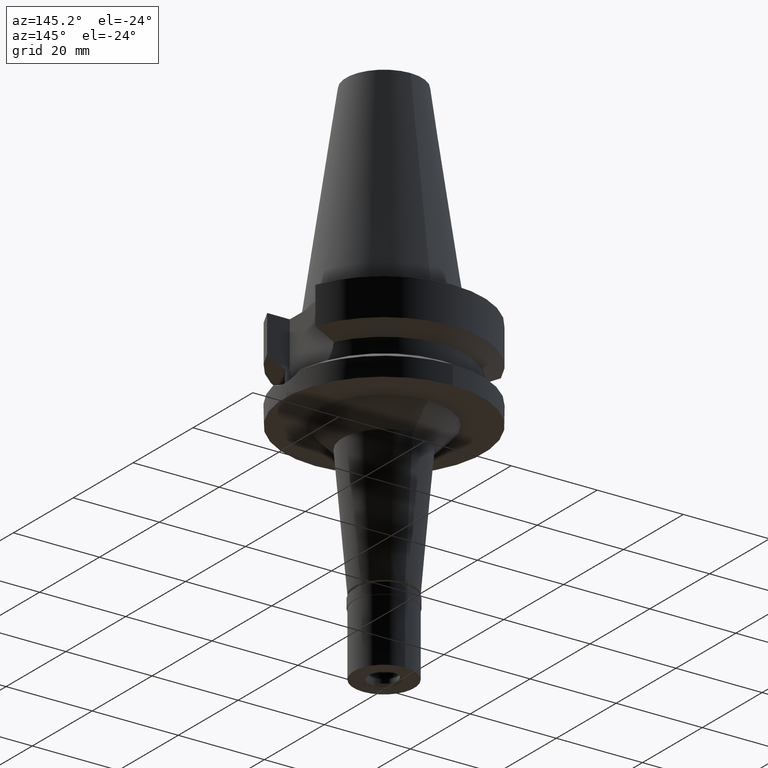
[diagram: clean part render]
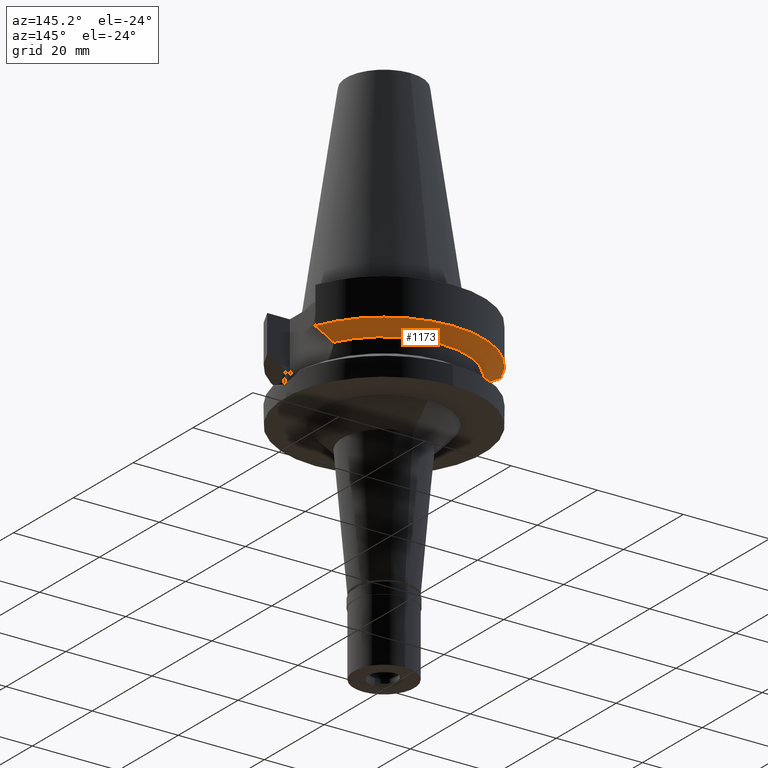
[diagram: same view with one face highlighted and labeled with its STEP entity id]
A machine part, auxiliary view. The second image highlights one B-rep face of the part: STEP entity #1173.
In plain terms, the highlighted conical surface has half-angle 60 deg.
Its self-contained STEP definition (entity closure, byte-faithful):
#4 = ORIENTED_EDGE ( 'NONE', *, *, #2359, .T. ) ;
#71 = CARTESIAN_POINT ( 'NONE',  ( -18.96736186712000105, 8.050001278060001653, -10.94999977536999936 ) ) ;
#74 = CARTESIAN_POINT ( 'NONE',  ( 20.64098922513855783, 8.049999155450747068, -10.05625859774404773 ) ) ;
#216 = CARTESIAN_POINT ( 'NONE',  ( 21.54524325238000060, 8.049999577379001181, -9.567211146543000311 ) ) ;
#226 = CIRCLE ( 'NONE', #2945, 19.00000000000000000 ) ;
#272 = CARTESIAN_POINT ( 'NONE',  ( -21.54524231189000005, 8.050002094537999753, -9.567194606710000215 ) ) ;
#275 = DIRECTION ( 'NONE',  ( 0.0000000000000000000, 0.0000000000000000000, -1.000000000000000000 ) ) ;
#293 = CARTESIAN_POINT ( 'NONE',  ( 19.78174442298432112, 8.049991903556993122, -10.51718567366341972 ) ) ;
#300 = CARTESIAN_POINT ( 'NONE',  ( -18.96736186712000105, 8.050001278060001653, -10.94999977536999936 ) ) ;
#309 = AXIS2_PLACEMENT_3D ( 'NONE', #2471, #1795, #442 ) ;
#416 = EDGE_CURVE ( 'NONE', #2184, #496, #1579, .T. ) ;
#442 = DIRECTION ( 'NONE',  ( 0.0000000000000000000, 1.000000000000000000, 0.0000000000000000000 ) ) ;
#447 = B_SPLINE_CURVE_WITH_KNOTS ( 'NONE', 3,
 ( #1664, #2125, #2218, #2891 ),
 .UNSPECIFIED., .F., .F.,
 ( 4, 4 ),
 ( 0.0000000000000000000, 1.000000000000000000 ),
 .UNSPECIFIED. ) ;
#496 = VERTEX_POINT ( 'NONE', #978 ) ;
#557 = ORIENTED_EDGE ( 'NONE', *, *, #1534, .T. ) ;
#602 = VERTEX_POINT ( 'NONE', #300 ) ;
#732 = B_SPLINE_CURVE_WITH_KNOTS ( 'NONE', 3,
 ( #1617, #939, #2732, #2939 ),
 .UNSPECIFIED., .F., .F.,
 ( 4, 4 ),
 ( 0.0000000000000000000, 1.000000000000000000 ),
 .UNSPECIFIED. ) ;
#786 = DIRECTION ( 'NONE',  ( 0.0000000000000000000, 1.000000000000000000, 0.0000000000000000000 ) ) ;
#837 = CARTESIAN_POINT ( 'NONE',  ( 0.0000000000000000000, 1.093341284896999988E-14, -10.72190890808999875 ) ) ;
#939 = CARTESIAN_POINT ( 'NONE',  ( -18.30417674803561212, 8.050000009835176940, -11.30245975391281377 ) ) ;
#978 = CARTESIAN_POINT ( 'NONE',  ( -21.54524231189000005, 8.050002094537999753, -9.567194606710000215 ) ) ;
#1070 = CARTESIAN_POINT ( 'NONE',  ( -17.23531135277999837, 7.996501749842999551, -11.87660739337000138 ) ) ;
#1173 = ADVANCED_FACE ( 'NONE', ( #1282 ), #1701, .T. ) ;
#1182 = EDGE_CURVE ( 'NONE', #1584, #2116, #447, .T. ) ;
#1212 = VERTEX_POINT ( 'NONE', #1070 ) ;
#1220 = CARTESIAN_POINT ( 'NONE',  ( 17.23531622902000038, 7.996491146276001771, -11.87660607782000000 ) ) ;
#1241 = CARTESIAN_POINT ( 'NONE',  ( 21.54524325238000060, 8.049999577379001181, -9.567211146543000311 ) ) ;
#1253 = EDGE_CURVE ( 'NONE', #602, #1212, #732, .T. ) ;
#1282 = FACE_OUTER_BOUND ( 'NONE', #1770, .T. ) ;
#1300 = DIRECTION ( 'NONE',  ( 0.0000000000000000000, 0.0000000000000000000, 1.000000000000000000 ) ) ;
#1534 = EDGE_CURVE ( 'NONE', #602, #496, #2778, .T. ) ;
#1579 = CIRCLE ( 'NONE', #309, 23.00000000000000000 ) ;
#1584 = VERTEX_POINT ( 'NONE', #1220 ) ;
#1617 = CARTESIAN_POINT ( 'NONE',  ( -18.96736186712000105, 8.050001278060001653, -10.94999977536999936 ) ) ;
#1658 = CARTESIAN_POINT ( 'NONE',  ( -19.78176599987391171, 8.050001300084177913, -10.51717224073628465 ) ) ;
#1664 = CARTESIAN_POINT ( 'NONE',  ( 17.23531622902000038, 7.996491146276001771, -11.87660607782000000 ) ) ;
#1699 = CARTESIAN_POINT ( 'NONE',  ( 18.96738966530000070, 8.049994318182998043, -10.95000099923000114 ) ) ;
#1701 = CONICAL_SURFACE ( 'NONE', #2139, 21.00000000000000000, 1.047197551196400456 ) ;
#1704 = EDGE_CURVE ( 'NONE', #1212, #1584, #226, .T. ) ;
#1758 = ORIENTED_EDGE ( 'NONE', *, *, #1182, .F. ) ;
#1770 = EDGE_LOOP ( 'NONE', ( #2476, #4, #1758, #2659, #2447, #557 ) ) ;
#1795 = DIRECTION ( 'NONE',  ( 0.0000000000000000000, 0.0000000000000000000, 1.000000000000000000 ) ) ;
#1899 = CARTESIAN_POINT ( 'NONE',  ( -20.64102060711187647, 8.050004185766363562, -10.05624058751050853 ) ) ;
#2116 = VERTEX_POINT ( 'NONE', #1699 ) ;
#2125 = CARTESIAN_POINT ( 'NONE',  ( 17.72598986981198976, 8.027133616248125492, -11.61218197823705545 ) ) ;
#2139 = AXIS2_PLACEMENT_3D ( 'NONE', #837, #1300, #2876 ) ;
#2184 = VERTEX_POINT ( 'NONE', #216 ) ;
#2218 = CARTESIAN_POINT ( 'NONE',  ( 18.30334768190532557, 8.049999956193227391, -11.30291651679201870 ) ) ;
#2310 = CARTESIAN_POINT ( 'NONE',  ( 0.0000000000000000000, 1.093341284896999988E-14, -11.87660944646999894 ) ) ;
#2325 = CARTESIAN_POINT ( 'NONE',  ( 18.96738966530000070, 8.049994318182998043, -10.95000099923000114 ) ) ;
#2359 = EDGE_CURVE ( 'NONE', #2184, #2116, #2685, .T. ) ;
#2447 = ORIENTED_EDGE ( 'NONE', *, *, #1253, .F. ) ;
#2471 = CARTESIAN_POINT ( 'NONE',  ( 0.0000000000000000000, 1.093341284896999988E-14, -9.567208369710998639 ) ) ;
#2476 = ORIENTED_EDGE ( 'NONE', *, *, #416, .F. ) ;
#2659 = ORIENTED_EDGE ( 'NONE', *, *, #1704, .F. ) ;
#2685 = B_SPLINE_CURVE_WITH_KNOTS ( 'NONE', 3,
 ( #1241, #74, #293, #2325 ),
 .UNSPECIFIED., .F., .F.,
 ( 4, 4 ),
 ( 0.0000000000000000000, 1.000000000000000000 ),
 .UNSPECIFIED. ) ;
#2732 = CARTESIAN_POINT ( 'NONE',  ( -17.72682657658894456, 8.027186145136633755, -11.61172868551800086 ) ) ;
#2778 = B_SPLINE_CURVE_WITH_KNOTS ( 'NONE', 3,
 ( #71, #1658, #1899, #272 ),
 .UNSPECIFIED., .F., .F.,
 ( 4, 4 ),
 ( 0.0000000000000000000, 1.000000000000000000 ),
 .UNSPECIFIED. ) ;
#2876 = DIRECTION ( 'NONE',  ( 0.0000000000000000000, 1.000000000000000000, 0.0000000000000000000 ) ) ;
#2891 = CARTESIAN_POINT ( 'NONE',  ( 18.96738966530000070, 8.049994318182998043, -10.95000099923000114 ) ) ;
#2939 = CARTESIAN_POINT ( 'NONE',  ( -17.23531135277999837, 7.996501749842999551, -11.87660739337000138 ) ) ;
#2945 = AXIS2_PLACEMENT_3D ( 'NONE', #2310, #275, #786 ) ;